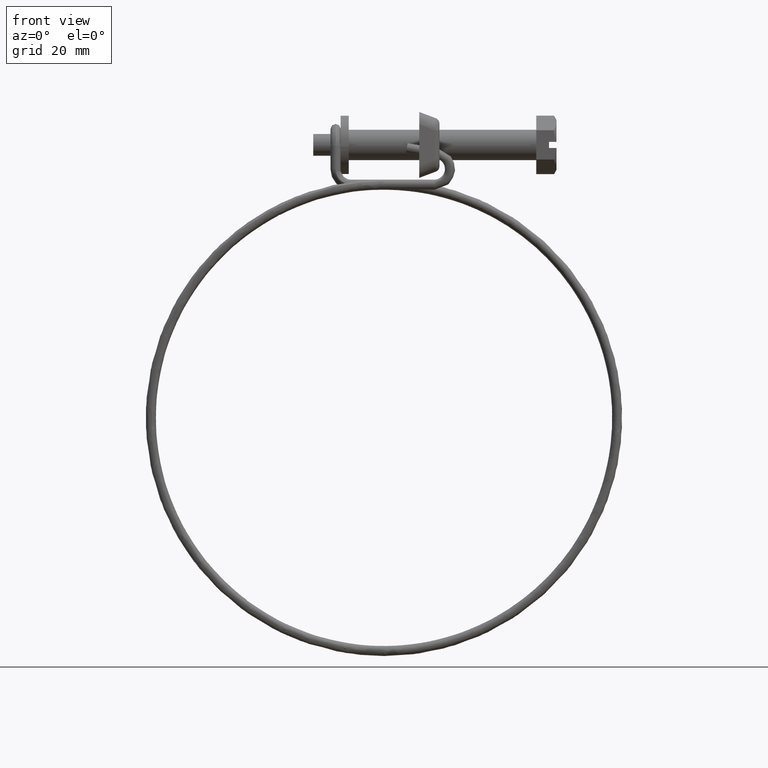
[diagram: clean part render]
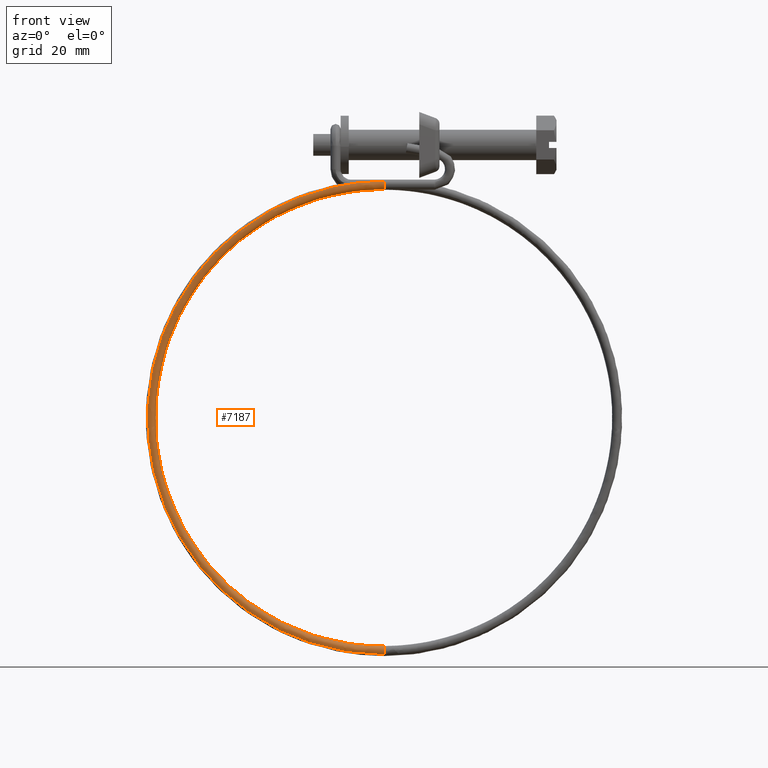
[diagram: same view with one face highlighted and labeled with its STEP entity id]
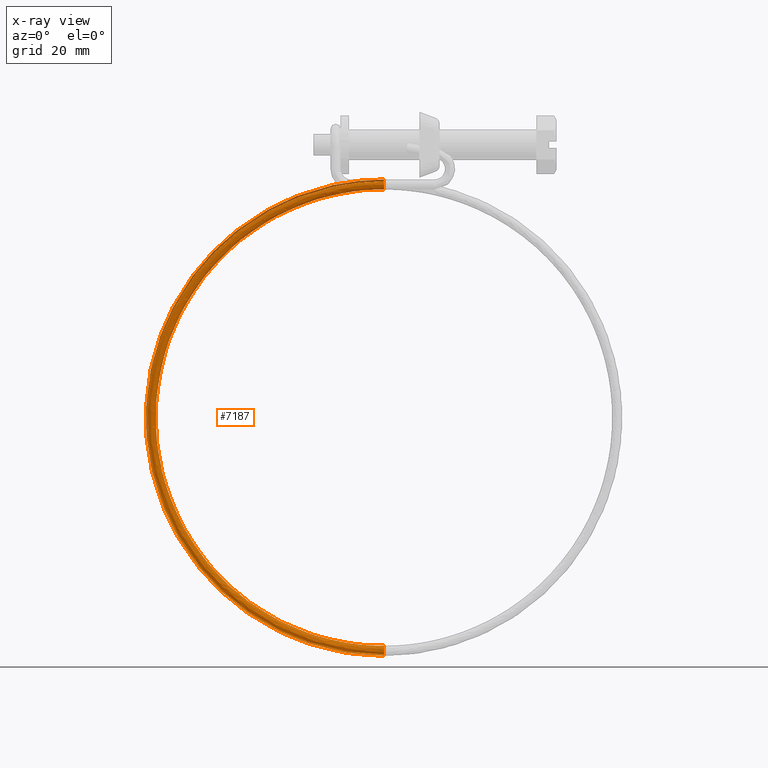
[diagram: x-ray of the same camera — body ghosted, the highlighted face saturated]
A machine part, front view. The second image highlights one B-rep face of the part: STEP entity #7187.
The next image is the same camera in x-ray: the body ghosted, the highlighted face saturated — about 0% of this face is hidden behind the body in this view.
In plain terms, the highlighted face is a freeform B-spline surface patch.
Its self-contained STEP definition (entity closure, byte-faithful):
#4588=CARTESIAN_POINT('',(-30.050000000001202,-5.999755766101560,-6.899852987345033));
#4589=VERTEX_POINT('',#4588);
#4595=CARTESIAN_POINT('',(-30.050000000001202,-6.353676782668250,-6.850955199523090));
#4596=VERTEX_POINT('',#4595);
#4597=CARTESIAN_POINT('',(-30.050000000001202,-5.999755766101560,-6.899852987345033));
#4598=CARTESIAN_POINT('',(-30.050000000001202,-6.113607262897650,-6.862736609330352));
#4599=CARTESIAN_POINT('',(-30.050000000001202,-6.233966868245355,-6.845572658446841));
#4600=CARTESIAN_POINT('',(-30.050000000001202,-6.353676782668250,-6.850955199523090));
#4601=B_SPLINE_CURVE_WITH_KNOTS('',3,(#4597,#4598,#4599,#4600),.UNSPECIFIED.,.F.,.U.,(4,4),(0.942811831421917,1.0),.UNSPECIFIED.);
#4602=EDGE_CURVE('',#4589,#4596,#4601,.T.);
#4604=CARTESIAN_POINT('',(-30.050000000001202,-7.068152185222118,-7.197955006450738));
#4605=VERTEX_POINT('',#4604);
#4615=CARTESIAN_POINT('',(-30.050000000001202,-6.266327173640335,-8.849046800477041));
#4616=VERTEX_POINT('',#4615);
#4617=CARTESIAN_POINT('',(-30.050000000001202,-7.068152185222118,-7.197955006450738));
#4618=CARTESIAN_POINT('',(-30.050000000001202,-7.231707609860766,-7.388647784320882));
#4619=CARTESIAN_POINT('',(-30.050000000001202,-7.320024436839228,-7.642588606575031));
#4620=CARTESIAN_POINT('',(-30.050000000001202,-7.297613741547260,-8.155225383462200));
#4621=CARTESIAN_POINT('',(-30.050000000001202,-7.178579853997870,-8.410457414939762));
#4622=CARTESIAN_POINT('',(-30.050000000001202,-6.792522721899500,-8.764174206404380));
#4623=CARTESIAN_POINT('',(-30.050000000001202,-6.527876752588520,-8.860480837561040));
#4624=CARTESIAN_POINT('',(-30.050000000001202,-6.266327173640335,-8.849046800477041));
#4625=B_SPLINE_CURVE_WITH_KNOTS('',3,(#4617,#4618,#4619,#4620,#4621,#4622,#4623,#4624),.UNSPECIFIED.,.F.,.U.,(4,2,2,4),(0.130000190141414,0.250000000000000,0.375000000000000,0.500000000000000),.UNSPECIFIED.);
#4626=EDGE_CURVE('',#4605,#4616,#4625,.T.);
#4628=CARTESIAN_POINT('',(-30.050000000001202,-5.310192244681825,-7.867397755273982));
#4629=VERTEX_POINT('',#4628);
#4630=CARTESIAN_POINT('',(-30.050000000001202,-6.266327173640335,-8.849046800477041));
#4631=CARTESIAN_POINT('',(-30.050000000001202,-6.004772179400162,-8.837612870360598));
#4632=CARTESIAN_POINT('',(-30.050000000001202,-5.749532668711657,-8.718579130547061));
#4633=CARTESIAN_POINT('',(-30.050000000001209,-5.409562094245679,-8.347540905917407));
#4634=CARTESIAN_POINT('',(-30.050000000001209,-5.314962170518426,-8.108624560470318));
#4635=CARTESIAN_POINT('',(-30.050000000001202,-5.310192244681825,-7.867397755273982));
#4636=B_SPLINE_CURVE_WITH_KNOTS('',3,(#4630,#4631,#4632,#4633,#4634,#4635),.UNSPECIFIED.,.F.,.U.,(4,2,4),(0.500000000000000,0.625000000000000,0.740274350575680),.UNSPECIFIED.);
#4637=EDGE_CURVE('',#4616,#4629,#4636,.T.);
#4708=CARTESIAN_POINT('',(-30.050000000001202,-5.310192244681825,-7.867397755273982));
#4709=CARTESIAN_POINT('',(-30.050000000001202,-5.309788697274628,-7.847039215376136));
#4710=CARTESIAN_POINT('',(-30.050000000001202,-5.310024531787822,-7.826664080409800));
#4711=CARTESIAN_POINT('',(-30.050000000001209,-5.322325991348797,-7.544672948505983));
#4712=CARTESIAN_POINT('',(-30.050000000001209,-5.441333897828240,-7.289333696927684));
#4713=CARTESIAN_POINT('',(-30.050000000001209,-5.739042369774401,-7.016377631394038));
#4714=CARTESIAN_POINT('',(-30.050000000001202,-5.864823997343013,-6.944088265251513));
#4715=CARTESIAN_POINT('',(-30.050000000001202,-5.999755766101560,-6.899852987345033));
#4716=B_SPLINE_CURVE_WITH_KNOTS('',3,(#4708,#4709,#4710,#4711,#4712,#4713,#4714,#4715),.UNSPECIFIED.,.F.,.U.,(4,2,2,4),(0.740274350575680,0.750000000000000,0.875000000000000,0.942811831421917),.UNSPECIFIED.);
#4717=EDGE_CURVE('',#4629,#4589,#4716,.T.);
#6091=CARTESIAN_POINT('',(-30.049999999998960,-4.300002000000002,-98.850001000000105));
#6092=VERTEX_POINT('',#6091);
#6093=CARTESIAN_POINT('',(-30.049999999996380,-3.302485887035306,-99.919730657954716));
#6094=VERTEX_POINT('',#6093);
#6095=CARTESIAN_POINT('',(-30.049999999998960,-4.300002000000002,-98.850001000000105));
#6096=CARTESIAN_POINT('',(-30.049999999998640,-4.038196562363255,-98.850001438668670));
#6097=CARTESIAN_POINT('',(-30.049999999998189,-3.778000607902754,-98.957775164691753));
#6098=CARTESIAN_POINT('',(-30.049999999997279,-3.407742631726005,-99.328016695221947));
#6099=CARTESIAN_POINT('',(-30.049999999996810,-3.299960596688532,-99.588204614319778));
#6100=CARTESIAN_POINT('',(-30.049999999996441,-3.299953531839380,-99.873276473137182));
#6101=CARTESIAN_POINT('',(-30.049999999996409,-3.300804581624376,-99.896535733557755));
#6102=CARTESIAN_POINT('',(-30.049999999996380,-3.302485887035306,-99.919730657954716));
#6103=B_SPLINE_CURVE_WITH_KNOTS('',3,(#6095,#6096,#6097,#6098,#6099,#6100,#6101,#6102),.UNSPECIFIED.,.F.,.U.,(4,2,2,4),(0.500000000000000,0.625000000000000,0.750000000000000,0.761111541812466),.UNSPECIFIED.);
#6104=EDGE_CURVE('',#6092,#6094,#6103,.T.);
#6106=CARTESIAN_POINT('',(-30.049999999999081,-5.028950799199253,-100.534536873659600));
#6107=VERTEX_POINT('',#6106);
#6108=CARTESIAN_POINT('',(-30.049999999999081,-5.028950799199253,-100.534536873659600));
#6109=CARTESIAN_POINT('',(-30.049999999998921,-5.200678629125559,-100.351169305945400));
#6110=CARTESIAN_POINT('',(-30.049999999998931,-5.300001999999999,-100.101328014056190));
#6111=CARTESIAN_POINT('',(-30.049999999998938,-5.300002000000001,-99.588201612200976));
#6112=CARTESIAN_POINT('',(-30.049999999998938,-5.192228903609815,-99.328014341236823));
#6113=CARTESIAN_POINT('',(-30.049999999998960,-4.821988658763284,-98.957774096390295));
#6114=CARTESIAN_POINT('',(-30.049999999998960,-4.561801387799152,-98.850001000000120));
#6115=CARTESIAN_POINT('',(-30.049999999998960,-4.300002000000002,-98.850001000000105));
#6116=B_SPLINE_CURVE_WITH_KNOTS('',3,(#6108,#6109,#6110,#6111,#6112,#6113,#6114,#6115),.UNSPECIFIED.,.F.,.U.,(4,2,2,4),(0.130000190141357,0.250000000000000,0.375000000000000,0.500000000000000),.UNSPECIFIED.);
#6117=EDGE_CURVE('',#6107,#6092,#6116,.T.);
#6119=CARTESIAN_POINT('',(-30.049999999351751,-4.306285019941678,-100.849961522102010));
#6120=VERTEX_POINT('',#6119);
#6195=CARTESIAN_POINT('',(-30.049999999996380,-3.302485887035306,-99.919730657954716));
#6196=CARTESIAN_POINT('',(-30.049999999913780,-3.320535383567817,-100.157462601633600));
#6197=CARTESIAN_POINT('',(-30.049999999803219,-3.426078744593246,-100.388434106584600));
#6198=CARTESIAN_POINT('',(-30.049999999566900,-3.782184756067977,-100.742202801552690));
#6199=CARTESIAN_POINT('',(-30.049999999442232,-4.043596731425592,-100.849967568025700));
#6200=CARTESIAN_POINT('',(-30.049999999351751,-4.306285019941678,-100.849961522102010));
#6201=B_SPLINE_CURVE_WITH_KNOTS('',3,(#6195,#6196,#6197,#6198,#6199,#6200),.UNSPECIFIED.,.F.,.U.,(4,2,4),(0.761111541812465,0.875000000000000,1.0),.UNSPECIFIED.);
#6202=EDGE_CURVE('',#6094,#6120,#6201,.T.);
#6975=CARTESIAN_POINT('',(-29.316465910440801,-5.010253339403046,-100.554501505307200));
#6976=CARTESIAN_POINT('',(-29.319434353660061,-5.193259153396664,-100.369560689032600));
#6977=CARTESIAN_POINT('',(-29.327687735993369,-5.407574408970176,-99.848921664050195));
#6978=CARTESIAN_POINT('',(-29.339874438648430,-5.083829658602356,-99.066174429370420));
#6979=CARTESIAN_POINT('',(-29.344698783689651,-4.300038221902542,-98.741984493372328));
#6980=CARTESIAN_POINT('',(-29.339337775144148,-3.516059702781695,-99.066080280772042));
#6981=CARTESIAN_POINT('',(-29.326910074962331,-3.191961479679913,-99.850012860716149));
#6982=CARTESIAN_POINT('',(-29.314532908347100,-3.521037034678335,-100.644999445550600));
#6983=CARTESIAN_POINT('',(-29.311352684969119,-4.060936634034899,-100.859213813168590));
#6984=CARTESIAN_POINT('',(-29.311591037735290,-4.333648199412650,-100.850000999939700));
#6985=CARTESIAN_POINT('',(-29.560973825904728,-5.010273758755993,-100.553568177560710));
#6986=CARTESIAN_POINT('',(-29.562952802192381,-5.193279490113370,-100.368631138522800));
#6987=CARTESIAN_POINT('',(-29.568455096399699,-5.407594515929299,-99.848002615495346));
#6988=CARTESIAN_POINT('',(-29.576579622893099,-5.083849426312189,-99.065270887314341));
#6989=CARTESIAN_POINT('',(-29.579795875903269,-4.300057855318372,-98.741087089473837));
#6990=CARTESIAN_POINT('',(-29.576221844666950,-3.516079485441442,-99.065176054912740));
#6991=CARTESIAN_POINT('',(-29.567936652007599,-3.191981608301995,-99.849092821319488));
#6992=CARTESIAN_POINT('',(-29.559685148633790,-3.521057507851615,-100.644063657308610));
#6993=CARTESIAN_POINT('',(-29.557564984564522,-4.060957195735144,-100.858273978646590));
#6994=CARTESIAN_POINT('',(-29.557723887544171,-4.333668754475887,-100.849061468867700));
#6995=CARTESIAN_POINT('',(-35.918452267178822,-5.009193031034613,-100.603071917136010));
#6996=CARTESIAN_POINT('',(-35.894703984971819,-5.192203136030414,-100.417934542425200));
#6997=CARTESIAN_POINT('',(-35.828674878696162,-5.406530322257236,-99.896749006165763));
#6998=CARTESIAN_POINT('',(-35.731178234005029,-5.082803188463745,-99.113194797477746));
#6999=CARTESIAN_POINT('',(-35.692582276793161,-4.299018725765278,-98.788685393128802));
#7000=CARTESIAN_POINT('',(-35.735471675182062,-3.515032457180857,-99.113136156899287));
#7001=CARTESIAN_POINT('',(-35.834896359878847,-3.190916269256596,-99.897891657341503));
#7002=CARTESIAN_POINT('',(-35.933916763483452,-3.519973932348850,-100.693697828319100));
#7003=CARTESIAN_POINT('',(-35.959359339514293,-4.059868934420116,-100.908122790854900));
#7004=CARTESIAN_POINT('',(-35.957452458249030,-4.332580844295422,-100.898894199524410));
#7005=CARTESIAN_POINT('',(-42.271079205949540,-5.036804423429505,-99.339232017176656));
#7006=CARTESIAN_POINT('',(-42.221623564573108,-5.219702786648033,-99.159209329865831));
#7007=CARTESIAN_POINT('',(-42.084118385237211,-5.433719288888349,-98.652244542274843));
#7008=CARTESIAN_POINT('',(-41.881082264514149,-5.109533408115552,-97.889688284817794));
#7009=CARTESIAN_POINT('',(-41.800706437428012,-4.325567341314303,-97.573491341557144));
#7010=CARTESIAN_POINT('',(-41.890023327505880,-3.541782878300726,-97.888704987026443));
#7011=CARTESIAN_POINT('',(-42.097074578814123,-3.218134509173841,-98.652047302958593));
#7012=CARTESIAN_POINT('',(-42.303283918013157,-3.547658088935603,-99.426527348971632));
#7013=CARTESIAN_POINT('',(-42.356267914777668,-4.087672805000784,-99.635472710795611));
#7014=CARTESIAN_POINT('',(-42.352296847151713,-4.360375742553754,-99.626654801884357));
#7015=CARTESIAN_POINT('',(-53.563529549464583,-5.138995569741747,-94.661826264648283));
#7016=CARTESIAN_POINT('',(-53.468380777170673,-5.321480433060802,-94.500729941183920));
#7017=CARTESIAN_POINT('',(-53.203831604924090,-5.534347250929181,-94.046387523393989));
#7018=CARTESIAN_POINT('',(-52.813206044650236,-5.208463779876903,-93.361531916207639));
#7019=CARTESIAN_POINT('',(-52.658569262245607,-4.423825688696093,-93.076094298053135));
#7020=CARTESIAN_POINT('',(-52.830407948134507,-3.640788006525320,-93.357126929688448));
#7021=CARTESIAN_POINT('',(-53.228758304544911,-3.318870798282564,-94.041232029916358));
#7022=CARTESIAN_POINT('',(-53.625488887523133,-3.650118499679022,-94.736797055141523));
#7023=CARTESIAN_POINT('',(-53.727425938957509,-4.190576216319190,-94.925465773574913));
#7024=CARTESIAN_POINT('',(-53.719785916470329,-4.463245951675124,-94.918167567354658));
#7025=CARTESIAN_POINT('',(-63.923628907552747,-5.290252130666306,-87.738640315986899));
#7026=CARTESIAN_POINT('',(-63.786564775324337,-5.472124998233618,-87.605555738637705));
#7027=CARTESIAN_POINT('',(-63.405475226134477,-5.683290239030923,-87.229096451391115));
#7028=CARTESIAN_POINT('',(-62.842769558502987,-5.354894269108574,-86.659240793806305));
#7029=CARTESIAN_POINT('',(-62.620011493411290,-4.569261556020298,-86.419328159056136));
#7030=CARTESIAN_POINT('',(-62.867549320899009,-3.787329138190188,-86.649771576382960));
#7031=CARTESIAN_POINT('',(-63.441382746190193,-3.467974114615351,-87.216602551365980));
#7032=CARTESIAN_POINT('',(-64.012882848629644,-3.801773582316949,-87.795370311488369));
#7033=CARTESIAN_POINT('',(-64.159725662711892,-4.342886956836271,-87.954028818195425));
#7034=CARTESIAN_POINT('',(-64.148720023600760,-4.615507551657747,-87.948979830386108));
#7035=CARTESIAN_POINT('',(-74.308317527351051,-5.629786710424020,-72.197753909336512));
#7036=CARTESIAN_POINT('',(-74.129251695970851,-5.810286222064169,-72.127529404976414));
#7037=CARTESIAN_POINT('',(-73.631381714675570,-6.017633019752219,-71.925844630121460));
#7038=CARTESIAN_POINT('',(-72.896241480943203,-5.683598848559192,-71.614055899035534));
#7039=CARTESIAN_POINT('',(-72.605221813996181,-4.895734143017676,-71.476304114078033));
#7040=CARTESIAN_POINT('',(-72.928614711487640,-4.116282006040226,-71.593222237500669));
#7041=CARTESIAN_POINT('',(-73.678292674026835,-3.802676681698572,-71.896882896348487));
#7042=CARTESIAN_POINT('',(-74.424922293968564,-4.142202469191850,-72.213550444330124));
#7043=CARTESIAN_POINT('',(-74.616763369944437,-4.684787180129058,-72.304864198855157));
#7044=CARTESIAN_POINT('',(-74.602385181513654,-4.957297500589447,-72.304862594839918));
#7045=CARTESIAN_POINT('',(-77.953997426754256,-6.030301546535553,-53.865731360994438));
#7046=CARTESIAN_POINT('',(-77.760189580484266,-6.209181411071056,-53.869639958760537));
#7047=CARTESIAN_POINT('',(-77.221331284377229,-6.412024984065508,-53.874072933275642));
#7048=CARTESIAN_POINT('',(-76.425668905231007,-6.071341483172247,-53.866631634693647));
#7049=CARTESIAN_POINT('',(-76.110690361179067,-5.280844510167582,-53.849361744689823));
#7050=CARTESIAN_POINT('',(-76.460707338019077,-4.504317455915858,-53.832395483197033));
#7051=CARTESIAN_POINT('',(-77.272104298489410,-4.197492954764954,-53.825690102239591));
#7052=CARTESIAN_POINT('',(-78.080201954574719,-4.543771993243235,-53.833253621584397));
#7053=CARTESIAN_POINT('',(-78.287836797358125,-5.088091903131471,-53.845145333601749));
#7054=CARTESIAN_POINT('',(-78.272274890821748,-5.360472173146397,-53.851096287376073));
#7055=CARTESIAN_POINT('',(-75.523687821716521,-6.297298787138189,-41.644962006227480));
#7056=CARTESIAN_POINT('',(-75.339707454383628,-6.475098937339516,-41.698290364996119));
#7057=CARTESIAN_POINT('',(-74.828173225064589,-6.674940500675773,-41.840128758161988));
#7058=CARTESIAN_POINT('',(-74.072856763041443,-6.329824320247790,-42.035576276397478));
#7059=CARTESIAN_POINT('',(-73.773849940605658,-5.537572584186223,-42.098623900436742));
#7060=CARTESIAN_POINT('',(-74.106118490282967,-4.762995494059503,-41.992405548649593));
#7061=CARTESIAN_POINT('',(-74.876371675192289,-4.460691330672164,-41.778799133280572));
#7062=CARTESIAN_POINT('',(-75.643492854482048,-4.811472326315148,-41.580302919541687));
#7063=CARTESIAN_POINT('',(-75.840599088266615,-5.356948981509262,-41.539249074922267));
#7064=CARTESIAN_POINT('',(-75.825826284515358,-5.629242555272866,-41.549168215297172));
#7065=CARTESIAN_POINT('',(-70.846610992807683,-6.543997105921299,-30.353297541561972));
#7066=CARTESIAN_POINT('',(-70.681546258784763,-6.720799527962796,-30.452293060534139));
#7067=CARTESIAN_POINT('',(-70.222604564608957,-6.917867033867807,-30.721103238147869));
#7068=CARTESIAN_POINT('',(-69.544944699401839,-6.568654761457315,-31.104033575130419));
#7069=CARTESIAN_POINT('',(-69.276679762852169,-5.774781507131246,-31.241299946562901));
#7070=CARTESIAN_POINT('',(-69.574786677966017,-5.002006314092009,-31.052606702220981));
#7071=CARTESIAN_POINT('',(-70.265847571668516,-4.703879244745303,-30.647809911028119));
#7072=CARTESIAN_POINT('',(-70.954098471838620,-5.058820349508169,-30.258900740455470));
#7073=CARTESIAN_POINT('',(-71.130939558269560,-5.605365914619300,-30.168921664914969));
#7074=CARTESIAN_POINT('',(-71.117685595565121,-5.877579375257596,-30.182507674804238));
#7075=CARTESIAN_POINT('',(-63.923676794608497,-6.770343372317313,-19.993169812403359));
#7076=CARTESIAN_POINT('',(-63.786612485383507,-6.946230264063248,-20.134070201023508));
#7077=CARTESIAN_POINT('',(-63.405522444085022,-7.140752253331633,-20.519391588755202));
#7078=CARTESIAN_POINT('',(-62.842816049814253,-6.787781345636503,-21.074358966295510));
#7079=CARTESIAN_POINT('',(-62.620057697063650,-5.992420161860729,-21.279729571437230));
#7080=CARTESIAN_POINT('',(-62.867595844180890,-5.221298416573680,-21.015356130932119));
#7081=CARTESIAN_POINT('',(-63.441430010554377,-4.927004311227135,-20.435120189384140));
#7082=CARTESIAN_POINT('',(-64.012930850893341,-5.285762794388782,-19.871485239460249));
#7083=CARTESIAN_POINT('',(-64.159773854673475,-5.833289207248612,-19.736611639832699));
#7084=CARTESIAN_POINT('',(-64.148768201342989,-6.105429154882532,-19.753562424019432));
#7085=CARTESIAN_POINT('',(-53.563529549527509,-6.921602463276296,-13.069868061760680));
#7086=CARTESIAN_POINT('',(-53.468380777253493,-7.096877349187394,-13.238780657934290));
#7087=CARTESIAN_POINT('',(-53.203831604970652,-7.289697733372004,-13.701986459032470));
#7088=CARTESIAN_POINT('',(-52.813206044745073,-6.934214285395671,-14.371955680373430));
#7089=CARTESIAN_POINT('',(-52.658569262258943,-6.137858463342371,-14.622852019028461));
#7090=CARTESIAN_POINT('',(-52.830407948208169,-5.367842000598468,-14.307888530731971));
#7091=CARTESIAN_POINT('',(-53.228758304555612,-5.076110122124429,-13.610376532030180));
#7092=CARTESIAN_POINT('',(-53.625488887655877,-5.437420413618901,-12.929942393414660));
#7093=CARTESIAN_POINT('',(-53.727425939003709,-5.985602495163556,-12.765058087680099));
#7094=CARTESIAN_POINT('',(-53.719785916544453,-6.257693301458327,-12.784258127359511));
#7095=CARTESIAN_POINT('',(-42.271079205918809,-7.023793610123652,-8.392462309090131));
#7096=CARTESIAN_POINT('',(-42.221623564535918,-7.198654996137666,-8.580301269080337));
#7097=CARTESIAN_POINT('',(-42.084118385220471,-7.390325695927115,-9.096129439990875));
#7098=CARTESIAN_POINT('',(-41.881082264452083,-7.033144657701959,-9.843799311765654));
#7099=CARTESIAN_POINT('',(-41.800706437451311,-6.236116811245818,-10.125454975171900));
#7100=CARTESIAN_POINT('',(-41.890023327467610,-5.466847129351099,-9.776310473347445));
#7101=CARTESIAN_POINT('',(-42.097074578840562,-5.176846411769017,-8.999561259130417));
#7102=CARTESIAN_POINT('',(-42.303283917909027,-5.539880824906808,-8.240212099367653));
#7103=CARTESIAN_POINT('',(-42.356267914786287,-6.088505907018530,-8.055051150290856));
#7104=CARTESIAN_POINT('',(-42.352296847129011,-6.360563511110833,-8.075770892618486));
#7105=CARTESIAN_POINT('',(-35.918452231554681,-7.051634359162961,-7.128657225888329));
#7106=CARTESIAN_POINT('',(-35.894703949536229,-7.226383544041315,-7.321610665539633));
#7107=CARTESIAN_POINT('',(-35.828674843756680,-7.417742275768347,-7.851659003763467));
#7108=CARTESIAN_POINT('',(-35.731178199864942,-7.060100556846589,-8.620325963599600));
#7109=CARTESIAN_POINT('',(-35.692582242893501,-6.262890331442097,-8.910293737303201));
#7110=CARTESIAN_POINT('',(-35.735471641012751,-5.493823316682933,-8.551912480213453));
#7111=CARTESIAN_POINT('',(-35.834896324888547,-5.204292386784300,-7.753750951454620));
#7112=CARTESIAN_POINT('',(-35.933916727821249,-5.567794640407983,-6.973076549479135));
#7113=CARTESIAN_POINT('',(-35.959359303551487,-6.116539922961962,-6.782436234991239));
#7114=CARTESIAN_POINT('',(-35.957452422322831,-6.388588518440576,-6.803566647182156));
#7115=CARTESIAN_POINT('',(-29.560973829144039,-7.050306291501719,-7.178123418923648));
#7116=CARTESIAN_POINT('',(-29.562952805415112,-7.225060345392229,-7.370876746947826));
#7117=CARTESIAN_POINT('',(-29.568455099578500,-7.416432622299165,-7.900368698897718));
#7118=CARTESIAN_POINT('',(-29.576579626001951,-7.058810944514030,-8.668214108960832));
#7119=CARTESIAN_POINT('',(-29.579795878990151,-6.261608663020027,-8.957856654633204));
#7120=CARTESIAN_POINT('',(-29.576221847778349,-5.492532820431823,-8.599836804226390));
#7121=CARTESIAN_POINT('',(-29.567936655190739,-5.202981456484714,-7.802513071222955));
#7122=CARTESIAN_POINT('',(-29.559685151877421,-5.566463398991854,-7.022673052454937));
#7123=CARTESIAN_POINT('',(-29.557564987833381,-6.115203471148033,-6.832247125389463));
#7124=CARTESIAN_POINT('',(-29.557723890810092,-6.387252456900561,-6.853361469598615));
#7125=CARTESIAN_POINT('',(-29.316465915219400,-7.050318227624637,-7.177188803414568));
#7126=CARTESIAN_POINT('',(-29.319434358414249,-7.225072215869159,-7.369945916359841));
#7127=CARTESIAN_POINT('',(-29.327687740682730,-7.416444310513148,-7.899448391767939));
#7128=CARTESIAN_POINT('',(-29.339874443234681,-7.058822365000442,-8.667309340251775));
#7129=CARTESIAN_POINT('',(-29.344698788243399,-6.261619977872283,-8.956958037062988));
#7130=CARTESIAN_POINT('',(-29.339337779734141,-5.492544252661103,-8.598931351262445));
#7131=CARTESIAN_POINT('',(-29.326910079658060,-5.202993161852933,-7.801591772540467));
#7132=CARTESIAN_POINT('',(-29.314532913132179,-5.566475377754908,-7.021735972283534));
#7133=CARTESIAN_POINT('',(-29.311352689791260,-6.115215520445894,-6.831305990234035));
#7134=CARTESIAN_POINT('',(-29.311591042553129,-6.387264500903816,-6.852420638358623));
#7135=B_SPLINE_SURFACE_WITH_KNOTS('',3,3,((#6975,#6985,#6995,#7005,#7015,#7025,#7035,#7045,#7055,#7065,#7075,#7085,#7095,#7105,#7115,#7125),(#6976,#6986,#6996,#7006,#7016,#7026,#7036,#7046,#7056,#7066,#7076,#7086,#7096,#7106,#7116,#7126),(#6977,#6987,#6997,#7007,#7017,#7027,#7037,#7047,#7057,#7067,#7077,#7087,#7097,#7107,#7117,#7127),(#6978,#6988,#6998,#7008,#7018,#7028,#7038,#7048,#7058,#7068,#7078,#7088,#7098,#7108,#7118,#7128),(#6979,#6989,#6999,#7009,#7019,#7029,#7039,#7049,#7059,#7069,#7079,#7089,#7099,#7109,#7119,#7129),(#6980,#6990,#7000,#7010,#7020,#7030,#7040,#7050,#7060,#7070,#7080,#7090,#7100,#7110,#7120,#7130),(#6981,#6991,#7001,#7011,#7021,#7031,#7041,#7051,#7061,#7071,#7081,#7091,#7101,#7111,#7121,#7131),(#6982,#6992,#7002,#7012,#7022,#7032,#7042,#7052,#7062,#7072,#7082,#7092,#7102,#7112,#7122,#7132),(#6983,#6993,#7003,#7013,#7023,#7033,#7043,#7053,#7063,#7073,#7083,#7093,#7103,#7113,#7123,#7133),(#6984,#6994,#7004,#7014,#7024,#7034,#7044,#7054,#7064,#7074,#7084,#7094,#7104,#7114,#7124,#7134)),.UNSPECIFIED.,.F.,.F.,.U.,(4,1,1,1,1,1,1,4),(4,1,2,1,1,1,2,1,2,1,4),(0.0,0.781756651482073,1.567568629384951,2.353380607287829,3.139192585190708,3.925004563093586,4.710816540996464,5.530292534487363),(0.0,0.738420404273283,19.198930907460880,37.659441410649080,56.119951913837362,74.580462417024947,93.040972920212539,111.501483423400700,129.961993926588410,148.422504429776610,149.160924833404810),.UNSPECIFIED.);
#7136=ORIENTED_EDGE('',*,*,#4626,.F.);
#7137=CARTESIAN_POINT('',(-30.049999999999081,-5.028950799199253,-100.534536873659600));
#7138=CARTESIAN_POINT('',(-36.160116956307391,-5.028951531034189,-100.534536884988300));
#7139=CARTESIAN_POINT('',(-42.265746676662182,-5.055490241696852,-99.319796208832628));
#7140=CARTESIAN_POINT('',(-53.553609727592892,-5.157644194058678,-94.644092866007028));
#7141=CARTESIAN_POINT('',(-58.730404985870287,-5.233218465593756,-91.184971942274800));
#7142=CARTESIAN_POINT('',(-67.369534526265937,-5.421968491761252,-82.545667167788480));
#7143=CARTESIAN_POINT('',(-70.828473455147247,-5.535069986644651,-77.368882271534986));
#7144=CARTESIAN_POINT('',(-75.503850253124170,-5.781678640869447,-66.081321855348065));
#7145=CARTESIAN_POINT('',(-76.718451300704189,-5.915088832538731,-59.974984657924601));
#7146=CARTESIAN_POINT('',(-76.718451300620629,-6.182014151884770,-47.757507222186547));
#7147=CARTESIAN_POINT('',(-75.503850253041392,-6.315424343543600,-41.651170024679509));
#7148=CARTESIAN_POINT('',(-70.828473455230963,-6.562032997789296,-30.363609608659790));
#7149=CARTESIAN_POINT('',(-67.369534526202543,-6.675134492659621,-25.186824712282242));
#7150=CARTESIAN_POINT('',(-58.730404985937533,-6.863884518832323,-16.547519937878739));
#7151=CARTESIAN_POINT('',(-53.553609727626451,-6.939458790367177,-13.088399014210481));
#7152=CARTESIAN_POINT('',(-42.265746676630847,-7.041612742724309,-8.412695671171171));
#7153=CARTESIAN_POINT('',(-36.160116921864663,-7.068371955621887,-7.197988453295029));
#7154=CARTESIAN_POINT('',(-30.050000000001202,-7.068152185222118,-7.197955006450738));
#7155=B_SPLINE_CURVE_WITH_KNOTS('',3,(#7137,#7138,#7139,#7140,#7141,#7142,#7143,#7144,#7145,#7146,#7147,#7148,#7149,#7150,#7151,#7152,#7153,#7154),.UNSPECIFIED.,.F.,.U.,(4,2,2,2,2,2,2,2,4),(0.747113506343457,0.774020349091209,0.800927191838962,0.827834034586715,0.854740877334467,0.881647720082219,0.908554562829972,0.935461405577724,0.962368248325477),.UNSPECIFIED.);
#7156=EDGE_CURVE('',#6107,#4605,#7155,.T.);
#7157=ORIENTED_EDGE('',*,*,#7156,.F.);
#7158=ORIENTED_EDGE('',*,*,#6117,.T.);
#7159=ORIENTED_EDGE('',*,*,#6104,.T.);
#7160=ORIENTED_EDGE('',*,*,#6202,.T.);
#7161=CARTESIAN_POINT('',(-30.049999999351751,-4.306285019941678,-100.849961522102010));
#7162=CARTESIAN_POINT('',(-36.203504393758507,-4.306285757051541,-100.849961522080900));
#7163=CARTESIAN_POINT('',(-42.352489256162471,-4.332931154076809,-99.626595199726566));
#7164=CARTESIAN_POINT('',(-53.720498020976869,-4.435495669345751,-94.917695469840808));
#7165=CARTESIAN_POINT('',(-58.934044962970212,-4.511373641283750,-91.434017312028345));
#7166=CARTESIAN_POINT('',(-67.634498465731696,-4.700881931931798,-82.733390819719958));
#7167=CARTESIAN_POINT('',(-71.117985892908251,-4.814437685580738,-77.519865885709891));
#7168=CARTESIAN_POINT('',(-75.826542089642970,-5.062036604196178,-66.152206436664684));
#7169=CARTESIAN_POINT('',(-77.049761421335319,-5.195982415890676,-60.002541565695402));
#7170=CARTESIAN_POINT('',(-77.049761421336527,-5.463979386721374,-47.698375155930677));
#7171=CARTESIAN_POINT('',(-75.826542089791943,-5.597925198406723,-41.548710284919622));
#7172=CARTESIAN_POINT('',(-71.117985893255579,-5.845524117040455,-30.181050835957929));
#7173=CARTESIAN_POINT('',(-67.634498466006050,-5.959079870677621,-24.967525901886159));
#7174=CARTESIAN_POINT('',(-58.934044963615200,-6.148588161330892,-16.266899409619580));
#7175=CARTESIAN_POINT('',(-53.720498021564538,-6.224466133271544,-12.783221251930970));
#7176=CARTESIAN_POINT('',(-42.352489256773197,-6.327030648530020,-8.074321521752795));
#7177=CARTESIAN_POINT('',(-36.203504359649628,-6.353897322607622,-6.850989002045928));
#7178=CARTESIAN_POINT('',(-30.050000000001202,-6.353676782668250,-6.850955199523090));
#7179=B_SPLINE_CURVE_WITH_KNOTS('',3,(#7161,#7162,#7163,#7164,#7165,#7166,#7167,#7168,#7169,#7170,#7171,#7172,#7173,#7174,#7175,#7176,#7177,#7178),.UNSPECIFIED.,.F.,.U.,(4,2,2,2,2,2,2,2,4),(0.747113506343457,0.774020349091209,0.800927191838962,0.827834034586715,0.854740877334467,0.881647720082219,0.908554562829972,0.935461405577724,0.962368248325477),.UNSPECIFIED.);
#7180=EDGE_CURVE('',#6120,#4596,#7179,.T.);
#7181=ORIENTED_EDGE('',*,*,#7180,.T.);
#7182=ORIENTED_EDGE('',*,*,#4602,.F.);
#7183=ORIENTED_EDGE('',*,*,#4717,.F.);
#7184=ORIENTED_EDGE('',*,*,#4637,.F.);
#7185=EDGE_LOOP('',(#7136,#7157,#7158,#7159,#7160,#7181,#7182,#7183,#7184));
#7186=FACE_OUTER_BOUND('',#7185,.T.);
#7187=ADVANCED_FACE('',(#7186),#7135,.T.);